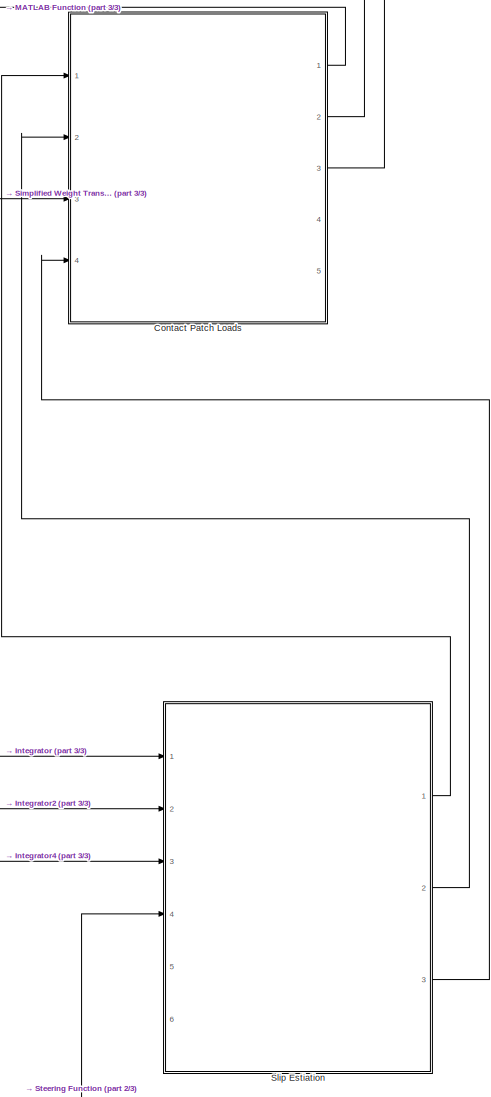
[diagram: root canvas - part 1/3, right side, full height]
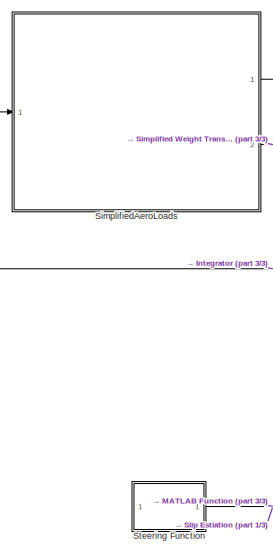
[diagram: root canvas - part 2/3, middle left region]
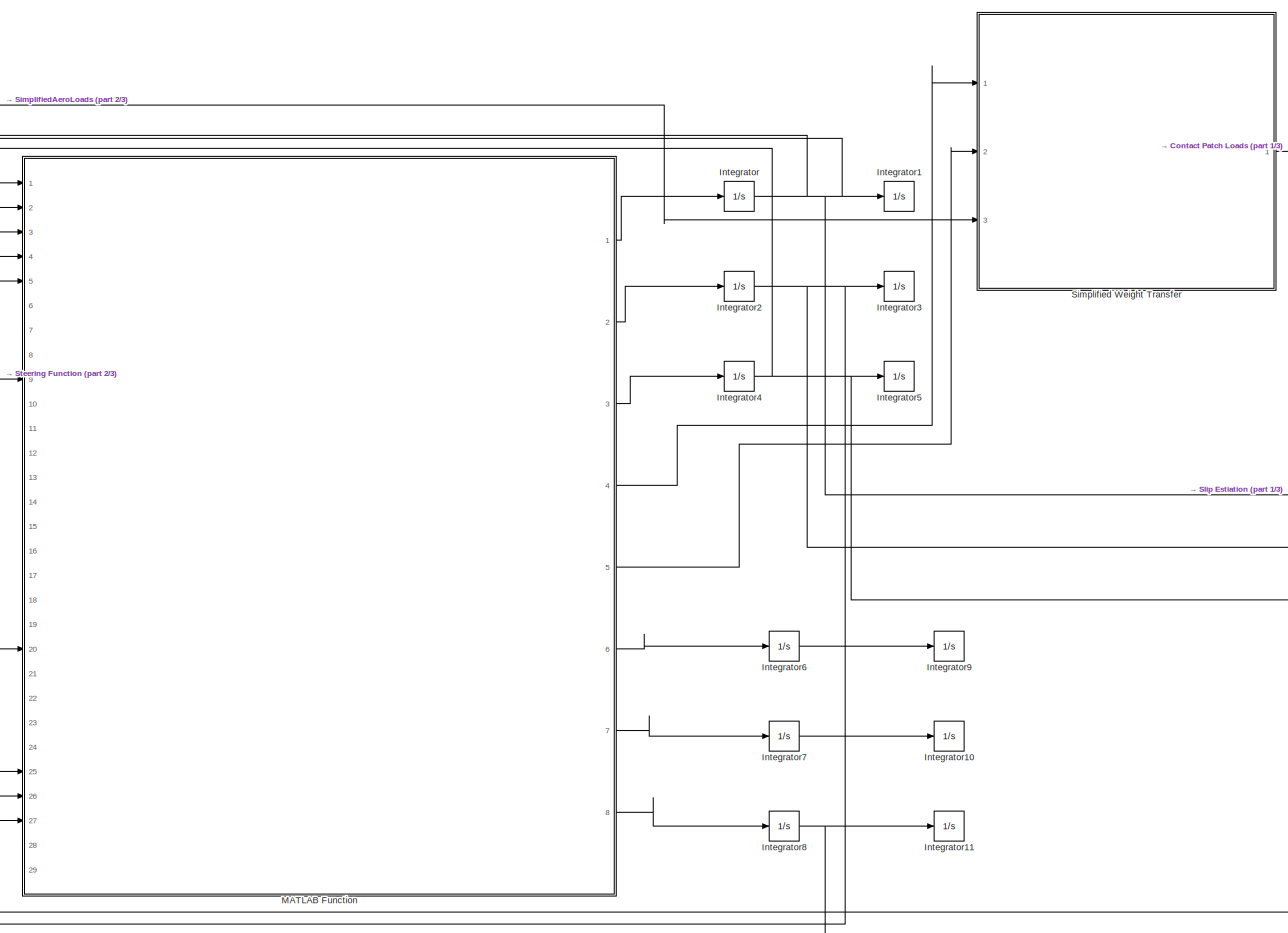
[diagram: root canvas - part 3/3, central region]
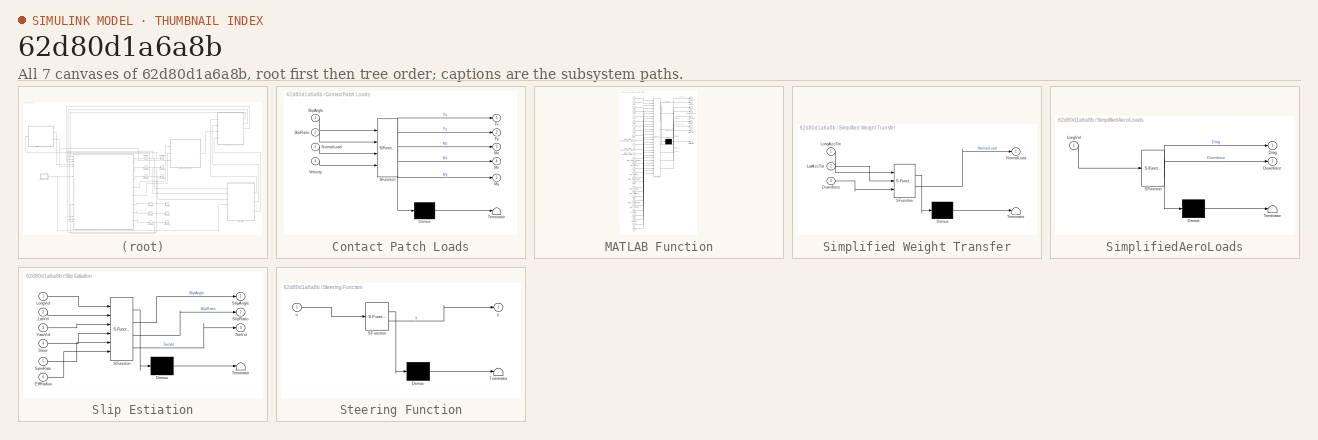
[diagram: thumbnail index - all 7 canvases of the model, root first then tree order]
MODEL slx_62d80d1a6a8b
KIND model
CONFIG AbsTol = auto
CONFIG EnableMultiTasking = off
CONFIG FixedStep = auto
CONFIG MaxStep = auto
CONFIG MinStep = auto
CONFIG RelTol = 1e-3
CONFIG SampleTimeConstraint = Unconstrained
CONFIG SolverName = VariableStepAuto
CONFIG StartTime = 0.0
CONFIG StopTime = 10.0
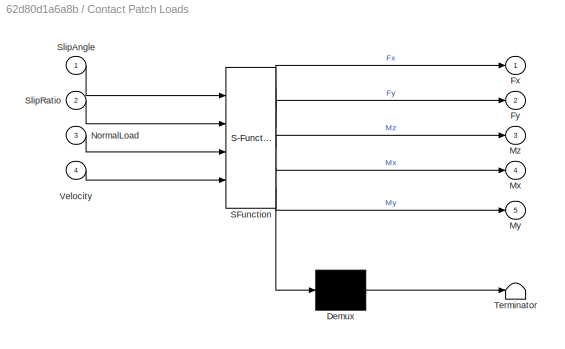
BLOCK [SubSystem] Contact Patch Loads
  ErrorFcn = Stateflow.Translate.translate
  PermitHierarchicalResolution = ExplicitOnly
  Ports = [4, 5]
  RequestExecContextInheritance = off
  SFBlockType = MATLAB Function
  TreatAsAtomicUnit = on
BLOCK [Demux] Contact Patch Loads/ Demux 
  Outputs = 1
  Ports = [1, 1]
BLOCK [S-Function] Contact Patch Loads/ SFunction 
  EnableBusSupport = off
  FunctionName = sf_sfun
  Parameters = Idx,Inclination,Model,Pressure,Tire
  PortCounts = [4 6]
  Ports = [4, 6]
  SFcnIsStateOwnerBlock = off
  SFunctionDeploymentMode = off
  Tag = Stateflow S-Function 5
BLOCK [Terminator] Contact Patch Loads/ Terminator 
BLOCK [Outport] Contact Patch Loads/Fx
BLOCK [Outport] Contact Patch Loads/Fy
  Port = 2
BLOCK [Outport] Contact Patch Loads/Mx
  Port = 4
BLOCK [Outport] Contact Patch Loads/My
  Port = 5
BLOCK [Outport] Contact Patch Loads/Mz
  Port = 3
BLOCK [Inport] Contact Patch Loads/NormalLoad
  Port = 3
BLOCK [Inport] Contact Patch Loads/SlipAngle
BLOCK [Inport] Contact Patch Loads/SlipRatio
  Port = 2
BLOCK [Inport] Contact Patch Loads/Velocity
  Port = 4
BLOCK [Integrator] Integrator
  Ports = [1, 1]
BLOCK [Integrator] Integrator1
  Ports = [1, 1]
BLOCK [Integrator] Integrator10
  Ports = [1, 1]
BLOCK [Integrator] Integrator11
  Ports = [1, 1]
BLOCK [Integrator] Integrator2
  Ports = [1, 1]
BLOCK [Integrator] Integrator3
  Ports = [1, 1]
BLOCK [Integrator] Integrator4
  Ports = [1, 1]
BLOCK [Integrator] Integrator5
  Ports = [1, 1]
BLOCK [Integrator] Integrator6
  Ports = [1, 1]
BLOCK [Integrator] Integrator7
  Ports = [1, 1]
BLOCK [Integrator] Integrator8
  Ports = [1, 1]
BLOCK [Integrator] Integrator9
  Ports = [1, 1]
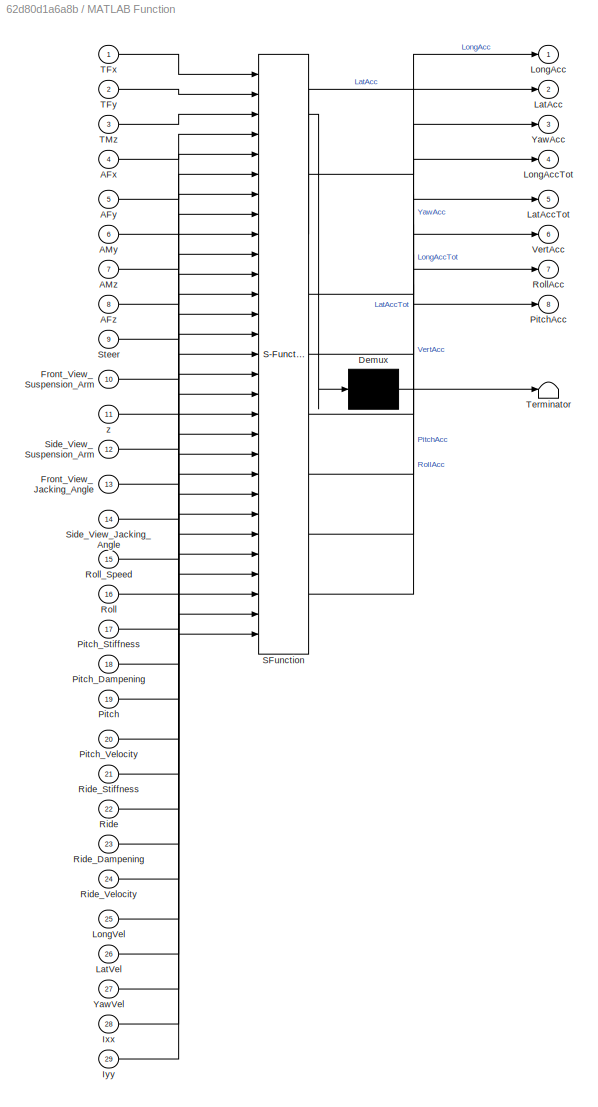
BLOCK [SubSystem] MATLAB Function
  ErrorFcn = Stateflow.Translate.translate
  PermitHierarchicalResolution = ExplicitOnly
  Ports = [29, 8]
  RequestExecContextInheritance = off
  SFBlockType = MATLAB Function
  TreatAsAtomicUnit = on
BLOCK [Demux] MATLAB Function/ Demux 
  Outputs = 1
  Ports = [1, 1]
BLOCK [S-Function] MATLAB Function/ SFunction 
  EnableBusSupport = off
  FunctionName = sf_sfun
  Parameters = CoG,Front_Roll_Stiffness,Mass,PercentFront,Rear_Roll_Stiffness,Roll_Dampening_Coeff_Front,Roll_Dampening_Coeff_Rear,Sprung_COG_Height,TrackWidth,TrackWidthTest,Wheelbase,YawInertia
  PortCounts = [29 9]
  Ports = [29, 9]
  SFcnIsStateOwnerBlock = off
  SFunctionDeploymentMode = off
  Tag = Stateflow S-Function 2
BLOCK [Terminator] MATLAB Function/ Terminator 
BLOCK [Inport] MATLAB Function/AFx
  Port = 4
BLOCK [Inport] MATLAB Function/AFy
  Port = 5
BLOCK [Inport] MATLAB Function/AFz
  Port = 8
BLOCK [Inport] MATLAB Function/AMy
  Port = 6
BLOCK [Inport] MATLAB Function/AMz
  Port = 7
BLOCK [Inport] MATLAB Function/Front_View_Jacking_Angle
  Port = 13
BLOCK [Inport] MATLAB Function/Front_View_Suspension_Arm
  Port = 10
BLOCK [Inport] MATLAB Function/Ixx
  Port = 28
BLOCK [Inport] MATLAB Function/Iyy
  Port = 29
BLOCK [Outport] MATLAB Function/LatAcc
  Port = 2
BLOCK [Outport] MATLAB Function/LatAccTot
  Port = 5
BLOCK [Inport] MATLAB Function/LatVel
  Port = 26
BLOCK [Outport] MATLAB Function/LongAcc
BLOCK [Outport] MATLAB Function/LongAccTot
  Port = 4
BLOCK [Inport] MATLAB Function/LongVel
  Port = 25
BLOCK [Inport] MATLAB Function/Pitch
  Port = 19
BLOCK [Outport] MATLAB Function/PitchAcc
  Port = 8
BLOCK [Inport] MATLAB Function/Pitch_Dampening
  Port = 18
BLOCK [Inport] MATLAB Function/Pitch_Stiffness
  Port = 17
BLOCK [Inport] MATLAB Function/Pitch_Velocity
  Port = 20
BLOCK [Inport] MATLAB Function/Ride
  Port = 22
BLOCK [Inport] MATLAB Function/Ride_Dampening
  Port = 23
BLOCK [Inport] MATLAB Function/Ride_Stiffness
  Port = 21
BLOCK [Inport] MATLAB Function/Ride_Velocity
  Port = 24
BLOCK [Inport] MATLAB Function/Roll
  Port = 16
BLOCK [Outport] MATLAB Function/RollAcc
  Port = 7
BLOCK [Inport] MATLAB Function/Roll_Speed
  Port = 15
BLOCK [Inport] MATLAB Function/Side_View_Jacking_Angle
  Port = 14
BLOCK [Inport] MATLAB Function/Side_View_Suspension_Arm
  Port = 12
BLOCK [Inport] MATLAB Function/Steer
  Port = 9
BLOCK [Inport] MATLAB Function/TFx
BLOCK [Inport] MATLAB Function/TFy
  Port = 2
BLOCK [Inport] MATLAB Function/TMz
  Port = 3
BLOCK [Outport] MATLAB Function/VertAcc
  Port = 6
BLOCK [Outport] MATLAB Function/YawAcc
  Port = 3
BLOCK [Inport] MATLAB Function/YawVel
  Port = 27
BLOCK [Inport] MATLAB Function/z
  Port = 11
BLOCK [SubSystem] Simplified Weight Transfer
  ErrorFcn = Stateflow.Translate.translate
  PermitHierarchicalResolution = ExplicitOnly
  Ports = [3, 1]
  RequestExecContextInheritance = off
  SFBlockType = MATLAB Function
  TreatAsAtomicUnit = on
BLOCK [Demux] Simplified Weight Transfer/ Demux 
  Outputs = 1
  Ports = [1, 1]
BLOCK [S-Function] Simplified Weight Transfer/ SFunction 
  EnableBusSupport = off
  FunctionName = sf_sfun
  Parameters = CoG,CoP,Mass,PerLLT,TrackWidth,Wheelbase
  PortCounts = [3 2]
  Ports = [3, 2]
  SFcnIsStateOwnerBlock = off
  SFunctionDeploymentMode = off
  Tag = Stateflow S-Function 1
BLOCK [Terminator] Simplified Weight Transfer/ Terminator 
BLOCK [Inport] Simplified Weight Transfer/Downforce
  Port = 3
BLOCK [Inport] Simplified Weight Transfer/LatAccTot
  Port = 2
BLOCK [Inport] Simplified Weight Transfer/LongAccTot
BLOCK [Outport] Simplified Weight Transfer/NormalLoad
BLOCK [SubSystem] SimplifiedAeroLoads
  ErrorFcn = Stateflow.Translate.translate
  PermitHierarchicalResolution = ExplicitOnly
  Ports = [1, 2]
  RequestExecContextInheritance = off
  SFBlockType = MATLAB Function
  TreatAsAtomicUnit = on
BLOCK [Demux] SimplifiedAeroLoads/ Demux 
  Outputs = 1
  Ports = [1, 1]
BLOCK [S-Function] SimplifiedAeroLoads/ SFunction 
  EnableBusSupport = off
  FunctionName = sf_sfun
  Parameters = AirDensity,DragCoeff,LiftCoeff,RefArea
  PortCounts = [1 3]
  Ports = [1, 3]
  SFcnIsStateOwnerBlock = off
  SFunctionDeploymentMode = off
  Tag = Stateflow S-Function 3
BLOCK [Terminator] SimplifiedAeroLoads/ Terminator 
BLOCK [Outport] SimplifiedAeroLoads/Downforce
  Port = 2
BLOCK [Outport] SimplifiedAeroLoads/Drag
BLOCK [Inport] SimplifiedAeroLoads/LongVel
BLOCK [SubSystem] Slip Estiation
  ErrorFcn = Stateflow.Translate.translate
  PermitHierarchicalResolution = ExplicitOnly
  Ports = [6, 3]
  RequestExecContextInheritance = off
  SFBlockType = MATLAB Function
  TreatAsAtomicUnit = on
BLOCK [Demux] Slip Estiation/ Demux 
  Outputs = 1
  Ports = [1, 1]
BLOCK [S-Function] Slip Estiation/ SFunction 
  EnableBusSupport = off
  FunctionName = sf_sfun
  Parameters = TirePos
  PortCounts = [6 4]
  Ports = [6, 4]
  SFcnIsStateOwnerBlock = off
  SFunctionDeploymentMode = off
  Tag = Stateflow S-Function 4
BLOCK [Terminator] Slip Estiation/ Terminator 
BLOCK [Inport] Slip Estiation/EffRadius
  Port = 6
BLOCK [Inport] Slip Estiation/LatVel
  Port = 2
BLOCK [Inport] Slip Estiation/LongVel
BLOCK [Outport] Slip Estiation/SlipAngle
BLOCK [Outport] Slip Estiation/SlipRatio
  Port = 2
BLOCK [Inport] Slip Estiation/SpinRate
  Port = 5
BLOCK [Inport] Slip Estiation/Steer
  Port = 4
BLOCK [Outport] Slip Estiation/TireVel
  Port = 3
BLOCK [Inport] Slip Estiation/YawVel
  Port = 3
BLOCK [SubSystem] Steering Function
  ErrorFcn = Stateflow.Translate.translate
  PermitHierarchicalResolution = ExplicitOnly
  Ports = [1, 1]
  RequestExecContextInheritance = off
  SFBlockType = MATLAB Function
  TreatAsAtomicUnit = on
BLOCK [Demux] Steering Function/ Demux 
  Outputs = 1
  Ports = [1, 1]
BLOCK [S-Function] Steering Function/ SFunction 
  EnableBusSupport = off
  FunctionName = sf_sfun
  PortCounts = [1 2]
  Ports = [1, 2]
  SFcnIsStateOwnerBlock = off
  SFunctionDeploymentMode = off
  Tag = Stateflow S-Function 6
BLOCK [Terminator] Steering Function/ Terminator 
BLOCK [Inport] Steering Function/u
BLOCK [Outport] Steering Function/y
LINE Contact Patch Loads:1 -> MATLAB Function:1
LINE Contact Patch Loads:2 -> MATLAB Function:2
LINE Contact Patch Loads:3 -> MATLAB Function:3
NET Integrator2:1 -> Integrator3:1, MATLAB Function:26, Slip Estiation:2
NET Integrator4:1 -> Integrator5:1, MATLAB Function:27, Slip Estiation:3
LINE Integrator6:1 -> Integrator9:1
LINE Integrator7:1 -> Integrator10:1
NET Integrator8:1 -> Integrator11:1, MATLAB Function:20
NET Integrator:1 -> Integrator1:1, MATLAB Function:25, SimplifiedAeroLoads:1, Slip Estiation:1
LINE MATLAB Function:1 -> Integrator:1
LINE MATLAB Function:2 -> Integrator2:1
LINE MATLAB Function:3 -> Integrator4:1
LINE MATLAB Function:4 -> Simplified Weight Transfer:1
LINE MATLAB Function:5 -> Simplified Weight Transfer:2
LINE MATLAB Function:6 -> Integrator6:1
LINE MATLAB Function:7 -> Integrator7:1
LINE MATLAB Function:8 -> Integrator8:1
LINE Simplified Weight Transfer:1 -> Contact Patch Loads:3
LINE SimplifiedAeroLoads:1 -> MATLAB Function:4
NET SimplifiedAeroLoads:2 -> MATLAB Function:5, Simplified Weight Transfer:3
LINE Slip Estiation:1 -> Contact Patch Loads:1
LINE Slip Estiation:2 -> Contact Patch Loads:2
LINE Slip Estiation:3 -> Contact Patch Loads:4
NET Steering Function:1 -> MATLAB Function:9, Slip Estiation:4
note: NET lines group one-source signal fan-out (src -> all destinations, sorted); 1:1 wires keep LINE
CHART SimplifiedAeroLoads states=1 transitions=1
  STATE_LABEL 'eML_blk_kernel()'
  STATE_LABEL 'SCRIPT:\nfunction [Drag, Downforce] = SimplifiedAeroLoads( LongVel, ...\n    AirDensity, RefArea, DragCoeff, LiftCoeff)\n%% SimplifiedWeightTransfer - Simplified Normal Loads\n% Computes tire normal loads using simplified weight transfer and\n% aerodynamic loading.\n% \n% Inputs:\n%   LongVel    - (n,1 numeric) Longitudinal Velocity {dot{x}}  [m/s]\n%   AirDensity - (n,1 numeric) Air Density           {rho...<+916ch>'
CHART Slip Estiation states=1 transitions=1
  STATE_LABEL 'eML_blk_kernel()'
  STATE_LABEL 'SCRIPT:\nfunction [SlipAngle, SlipRatio, TireVel] = SlipEstimation( ...\n    LongVel, LatVel, YawVel, Steer, SpinRate, EffRadius, TirePos)\n\n%% SlipEstimation - Slip Angle and Slip Ratio Calculations\n% Estimates tire slips and center velocity from chassis velocity and a\n% handful of tire states.\n% \n% Inputs:\n%   LongVel   - (1,1 numeric) Longitudinal Velocity {x_dot}   [m/s]\n%   LatVel    - (1,1 nume...<+1954ch>'
CHART Contact Patch Loads states=1 transitions=1
  STATE_LABEL 'eML_blk_kernel()'
  STATE_LABEL 'SCRIPT:\nfunction [Fx, Fy, Mz, Mx, My] = ContactPatchLoads( SlipAngle, SlipRatio, ...\n    NormalLoad, Velocity, ...\n    Tire, ...\nPressure, Inclination, Idx, Model)\n%% ContactPatchLoads - Tire Load Evaluation\n% This script evaluates a Pacejka contact patch tire model using the\n% formatted by TireModelFittingMain(). \n% \n% Inputs:\n%   Tire          - (struct)      Pacejka Parameters\n%   SlipAngle    ...<+3551ch>'
CHART Steering Function states=1 transitions=1
  STATE_LABEL 'eML_blk_kernel()'
  STATE_LABEL 'SCRIPT:\nfunction y = fcn(u)\n\ny = u;\n'
CHART Simplified Weight Transfer states=1 transitions=1
  STATE_LABEL 'eML_blk_kernel()'
  STATE_LABEL 'SCRIPT:\nfunction NormalLoad  = SimplifiedWeightTransfer( LongAccTot, LatAccTot, ...\n        Wheelbase, Downforce, TrackWidth, Mass, CoG, CoP, PerLLT) \n%% SimplifiedWeightTransfer - Simplified Normal Loads\n% Computes tire normal loads using simplified weight transfer and\n% aerodynamic loading.\n% \n% Inputs:\n%   LongAccTot - (n,1 numeric) Total Longitudinal Acceleration     {a_x}   [m/s^2]\n%   LatAcc...<+2114ch>'
CHART MATLAB Function states=1 transitions=1
  STATE_LABEL 'eML_blk_kernel()'
  STATE_LABEL 'SCRIPT:\nfunction [LongAcc, LatAcc, YawAcc, LongAccTot, LatAccTot, VertAcc, RollAcc, PitchAcc] = ...\n    ForceBasedRollCenter6DOFAccelerations( TFx, TFy, TMz, AFx, AFy, AMy, AMz, AFz, ...       % Loads\n        Steer, Front_View_Suspension_Arm, z, Side_View_Suspension_Arm, Front_View_Jacking_Angle, ...\n        Side_View_Jacking_Angle, ...\n        Roll_Speed, Roll, ...\n        Pitch_Stiffness, Pitch_...<+3596ch>'
CHART  states=0 transitions=0
CHART  states=0 transitions=0
CHART  states=0 transitions=0
CHART  states=0 transitions=0
CHART  states=0 transitions=0
CHART  states=0 transitions=0
